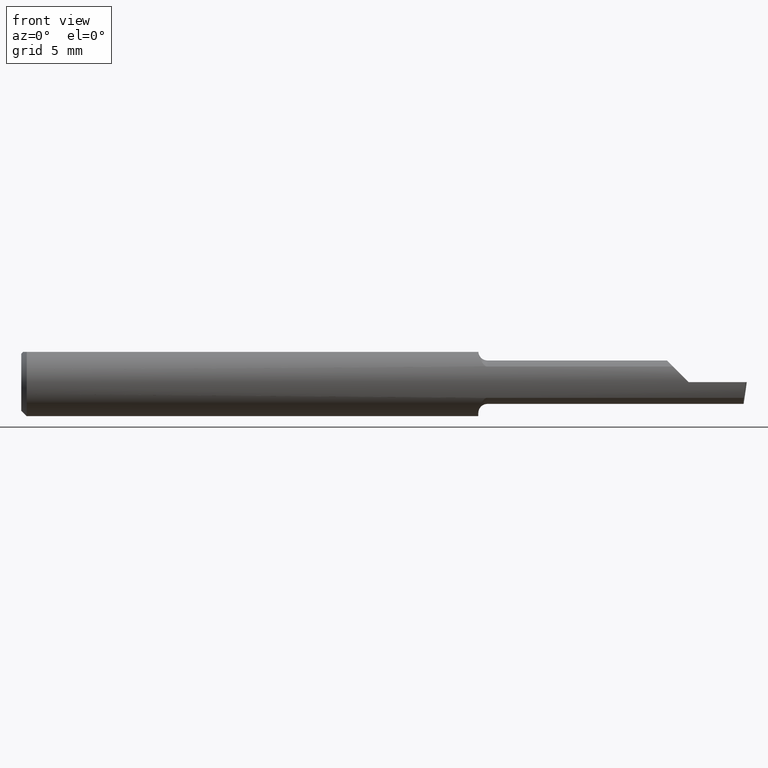
[diagram: clean part render]
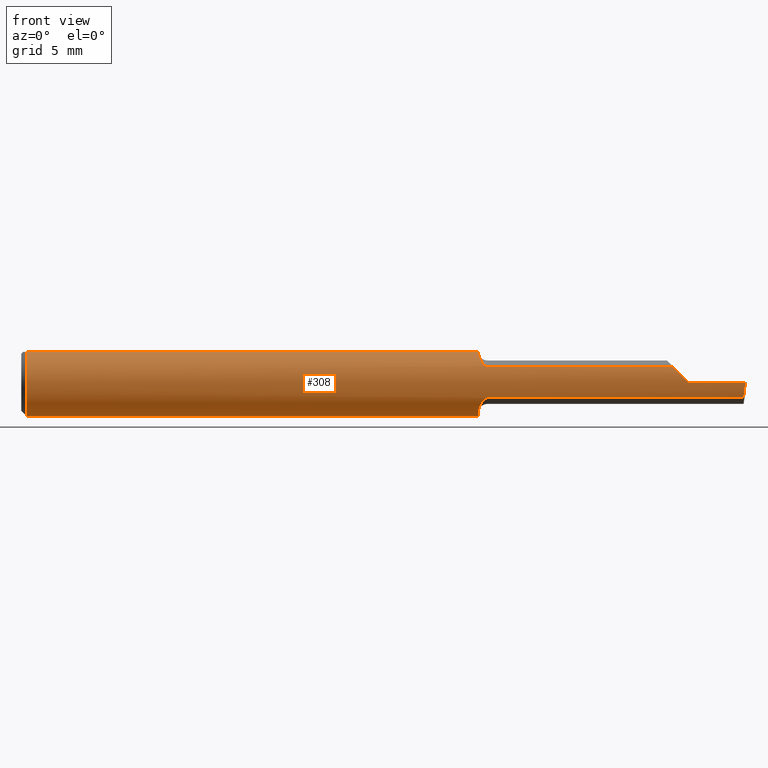
[diagram: same view with one face highlighted and labeled with its STEP entity id]
A machine part, front view. The second image highlights one B-rep face of the part: STEP entity #308.
In plain terms, the highlighted cylindrical surface (edge-blend (fillet) strip) has radius 2.3774 mm, axis along (-1, -0, -0).
Its self-contained STEP definition (entity closure, byte-faithful):
#5 = CARTESIAN_POINT ( 'NONE',  ( 1.262429122971264528, -0.06066239981255450858, 0.07149394324265896661 ) ) ;
#12 = EDGE_CURVE ( 'NONE', #49, #389, #305, .T. ) ;
#22 = VERTEX_POINT ( 'NONE', #260 ) ;
#25 = CARTESIAN_POINT ( 'NONE',  ( 5.659797890829555466E-31, -0.09359999999999998876, 1.030335658007946046E-15 ) ) ;
#28 = CARTESIAN_POINT ( 'NONE',  ( 1.996386342823452065, -0.09360000000000009979, -6.634435288474567089E-17 ) ) ;
#41 = ORIENTED_EDGE ( 'NONE', *, *, #392, .T. ) ;
#42 = CIRCLE ( 'NONE', #360, 0.09360000000000001652 ) ;
#46 = LINE ( 'NONE', #242, #625 ) ;
#47 = CARTESIAN_POINT ( 'NONE',  ( 1.259999999999999565, -0.04014498638740780084, -0.08455714216888013390 ) ) ;
#49 = VERTEX_POINT ( 'NONE', #311 ) ;
#55 = CARTESIAN_POINT ( 'NONE',  ( 1.269237437666584922, -0.07513599091569019006, -0.05602756047418826907 ) ) ;
#58 = CARTESIAN_POINT ( 'NONE',  ( 1.267076397983110780, -0.07187891021191493424, -0.06019546731975670972 ) ) ;
#64 = ORIENTED_EDGE ( 'NONE', *, *, #559, .F. ) ;
#71 = VECTOR ( 'NONE', #505, 39.37007874015748143 ) ;
#74 = EDGE_CURVE ( 'NONE', #22, #389, #200, .T. ) ;
#81 = CARTESIAN_POINT ( 'NONE',  ( 1.284999999999999920, -0.08307469879518099287, -0.04312255117789263320 ) ) ;
#82 = VERTEX_POINT ( 'NONE', #604 ) ;
#83 = CARTESIAN_POINT ( 'NONE',  ( 1.796877448822106649, -0.08307469879518082634, 0.04312255117789281361 ) ) ;
#89 = EDGE_CURVE ( 'NONE', #414, #599, #396, .T. ) ;
#93 = DIRECTION ( 'NONE',  ( 1.000000000000000000, 0.0000000000000000000, 0.0000000000000000000 ) ) ;
#96 = CARTESIAN_POINT ( 'NONE',  ( 1.260163936266268214, -0.04714148439307228738, 0.08105900800387486060 ) ) ;
#99 = CARTESIAN_POINT ( 'NONE',  ( 1.259999999999999565, 0.04209513035969836975, 0.08360000000000000764 ) ) ;
#105 = CARTESIAN_POINT ( 'NONE',  ( 1.263605992736883454, -0.06448586599545334808, -0.06805619079784631931 ) ) ;
#107 = LINE ( 'NONE', #25, #359 ) ;
#108 = VERTEX_POINT ( 'NONE', #347 ) ;
#109 = EDGE_CURVE ( 'NONE', #108, #414, #454, .T. ) ;
#110 = ORIENTED_EDGE ( 'NONE', *, *, #355, .T. ) ;
#119 = VERTEX_POINT ( 'NONE', #195 ) ;
#121 = DIRECTION ( 'NONE',  ( 1.000000000000000000, 0.0000000000000000000, 0.0000000000000000000 ) ) ;
#133 = ORIENTED_EDGE ( 'NONE', *, *, #465, .T. ) ;
#136 = CARTESIAN_POINT ( 'NONE',  ( 0.01499999999999999598, 0.0000000000000000000, 0.0000000000000000000 ) ) ;
#137 = AXIS2_PLACEMENT_3D ( 'NONE', #189, #283, #542 ) ;
#138 = ORIENTED_EDGE ( 'NONE', *, *, #208, .F. ) ;
#143 = EDGE_CURVE ( 'NONE', #271, #151, #341, .T. ) ;
#144 = CARTESIAN_POINT ( 'NONE',  ( 1.996386342823452065, -0.09360000000000009979, -6.634435288474567089E-17 ) ) ;
#151 = VERTEX_POINT ( 'NONE', #81 ) ;
#155 = CARTESIAN_POINT ( 'NONE',  ( 1.275413575230741392, -0.08042664989321215985, 0.04791921015141199086 ) ) ;
#157 = ORIENTED_EDGE ( 'NONE', *, *, #109, .F. ) ;
#162 = CARTESIAN_POINT ( 'NONE',  ( 1.259999999999999565, -0.03946024096385555846, -0.08487549341873928954 ) ) ;
#163 = CARTESIAN_POINT ( 'NONE',  ( 1.260121283746728382, -0.04659318327468393167, -0.08137765652544190487 ) ) ;
#169 = LINE ( 'NONE', #556, #550 ) ;
#175 = B_SPLINE_CURVE_WITH_KNOTS ( 'NONE', 3,
 ( #296, #209, #356, #499, #361, #55, #58, #105, #459, #562, #163, #509 ),
 .UNSPECIFIED., .F., .F.,
 ( 4, 2, 2, 2, 2, 4 ),
 ( 1.963546462201886234E-07, 0.0002171101490734188245, 0.0004340239435006174929, 0.0008678515323550143419, 0.001301679121209411245, 0.001735506710063808473 ),
 .UNSPECIFIED. ) ;
#189 = CARTESIAN_POINT ( 'NONE',  ( 0.0000000000000000000, 0.0000000000000000000, 0.0000000000000000000 ) ) ;
#191 = AXIS2_PLACEMENT_3D ( 'NONE', #450, #93, #343 ) ;
#195 = CARTESIAN_POINT ( 'NONE',  ( 0.01499999999999999598, 0.0000000000000000000, -0.09360000000000001652 ) ) ;
#199 = CARTESIAN_POINT ( 'NONE',  ( 1.569999999999999840, -0.08307469879518077083, -0.04312255117789288994 ) ) ;
#200 =( BOUNDED_CURVE ( )  B_SPLINE_CURVE ( 3, ( #405, #427, #223, #332 ),
 .UNSPECIFIED., .F., .F. ) 
 B_SPLINE_CURVE_WITH_KNOTS ( ( 4, 4 ),
 ( 4.712388980384689674, 5.191185112936686608 ),
 .UNSPECIFIED. ) 
 CURVE ( )  GEOMETRIC_REPRESENTATION_ITEM ( )  RATIONAL_B_SPLINE_CURVE ( ( 1.000000000000000000, 0.9809872534005956712, 0.9809872534005956712, 1.000000000000000000 ) ) 
 REPRESENTATION_ITEM ( '' )  );
#208 = EDGE_CURVE ( 'NONE', #119, #375, #42, .T. ) ;
#209 = CARTESIAN_POINT ( 'NONE',  ( 1.282100790213033914, -0.08307469879518096512, -0.04312255117789257769 ) ) ;
#217 =( BOUNDED_CURVE ( )  B_SPLINE_CURVE ( 3, ( #225, #222, #577, #28 ),
 .UNSPECIFIED., .F., .F. ) 
 B_SPLINE_CURVE_WITH_KNOTS ( ( 4, 4 ),
 ( 0.8819507499627846636, 1.360746882514781042 ),
 .UNSPECIFIED. ) 
 CURVE ( )  GEOMETRIC_REPRESENTATION_ITEM ( )  RATIONAL_B_SPLINE_CURVE ( ( 1.000000000000000000, 0.9809872534005956712, 0.9809872534005956712, 1.000000000000000000 ) ) 
 REPRESENTATION_ITEM ( '' )  );
#221 = AXIS2_PLACEMENT_3D ( 'NONE', #136, #534, #272 ) ;
#222 = CARTESIAN_POINT ( 'NONE',  ( 1.992827658777091893, -0.09002356847881787250, -0.02973569812382168345 ) ) ;
#223 = CARTESIAN_POINT ( 'NONE',  ( 1.810264301876177928, -0.09002356847881790025, 0.02973569812382162794 ) ) ;
#225 = CARTESIAN_POINT ( 'NONE',  ( 1.991365359011875169, -0.08307469879518077083, -0.04312255117789288994 ) ) ;
#236 = VERTEX_POINT ( 'NONE', #399 ) ;
#242 = CARTESIAN_POINT ( 'NONE',  ( 0.0000000000000000000, 0.04209513035969837669, 0.08360000000000000764 ) ) ;
#260 = CARTESIAN_POINT ( 'NONE',  ( 1.840000000000000080, -0.09360000000000005815, 1.959434878635762025E-17 ) ) ;
#271 = VERTEX_POINT ( 'NONE', #438 ) ;
#272 = DIRECTION ( 'NONE',  ( 0.0000000000000000000, 0.0000000000000000000, 1.000000000000000000 ) ) ;
#283 = DIRECTION ( 'NONE',  ( -1.000000000000000000, -0.0000000000000000000, -0.0000000000000000000 ) ) ;
#288 = CARTESIAN_POINT ( 'NONE',  ( 1.259999999999999565, -0.03946024096385555846, -0.08487549341873928954 ) ) ;
#295 = CARTESIAN_POINT ( 'NONE',  ( 1.269277238843510514, -0.07518688180261752507, 0.05595855205958084888 ) ) ;
#296 = CARTESIAN_POINT ( 'NONE',  ( 1.284999999999999920, -0.08307469879518099287, -0.04312255117789263320 ) ) ;
#299 = CARTESIAN_POINT ( 'NONE',  ( 1.267169981117899580, -0.07201923175886891515, 0.06001882546782343758 ) ) ;
#300 = DIRECTION ( 'NONE',  ( -1.000000000000000000, -0.0000000000000000000, -0.0000000000000000000 ) ) ;
#301 = CARTESIAN_POINT ( 'NONE',  ( 1.273723886093657054, -0.07921817987507924486, 0.04991299092652125291 ) ) ;
#305 = LINE ( 'NONE', #422, #426 ) ;
#307 = CYLINDRICAL_SURFACE ( 'NONE', #137, 0.09360000000000001652 ) ;
#308 = ADVANCED_FACE ( 'NONE', ( #371 ), #307, .T. ) ;
#311 = CARTESIAN_POINT ( 'NONE',  ( 1.284999999999999920, -0.08307469879518063205, 0.04312255117789297321 ) ) ;
#320 = VERTEX_POINT ( 'NONE', #144 ) ;
#329 = CARTESIAN_POINT ( 'NONE',  ( 0.01499999999999999598, 0.0000000000000000000, 0.0000000000000000000 ) ) ;
#332 = CARTESIAN_POINT ( 'NONE',  ( 1.796877448822106649, -0.08307469879518082634, 0.04312255117789281361 ) ) ;
#341 = LINE ( 'NONE', #199, #71 ) ;
#342 = ORIENTED_EDGE ( 'NONE', *, *, #656, .F. ) ;
#343 = DIRECTION ( 'NONE',  ( 0.0000000000000000000, 0.0000000000000000000, -1.000000000000000000 ) ) ;
#347 = CARTESIAN_POINT ( 'NONE',  ( 1.260020127471513041, -0.04149999999999998135, -0.08389702020930184245 ) ) ;
#352 = ORIENTED_EDGE ( 'NONE', *, *, #89, .F. ) ;
#355 = EDGE_CURVE ( 'NONE', #271, #320, #217, .T. ) ;
#356 = CARTESIAN_POINT ( 'NONE',  ( 1.279498465877713986, -0.08233174416856402222, -0.04456779206614366884 ) ) ;
#359 = VECTOR ( 'NONE', #579, 39.37007874015748143 ) ;
#360 = AXIS2_PLACEMENT_3D ( 'NONE', #329, #386, #478 ) ;
#361 = CARTESIAN_POINT ( 'NONE',  ( 1.273672693420809132, -0.07917899622880061883, -0.04997532113045941027 ) ) ;
#371 = FACE_OUTER_BOUND ( 'NONE', #540, .T. ) ;
#372 = B_SPLINE_CURVE_WITH_KNOTS ( 'NONE', 3,
 ( #617, #96, #658, #5, #453, #299, #295, #301, #155, #458, #498, #403 ),
 .UNSPECIFIED., .F., .F.,
 ( 4, 2, 2, 2, 2, 4 ),
 ( 4.385794166508631868E-07, 0.0004249653867803444818, 0.0008494921941440384964, 0.001274019001507732457, 0.001486282405189579599, 0.001698545808871426525 ),
 .UNSPECIFIED. ) ;
#375 = VERTEX_POINT ( 'NONE', #529 ) ;
#386 = DIRECTION ( 'NONE',  ( -1.000000000000000000, -0.0000000000000000000, -0.0000000000000000000 ) ) ;
#389 = VERTEX_POINT ( 'NONE', #83 ) ;
#392 = EDGE_CURVE ( 'NONE', #320, #22, #107, .T. ) ;
#394 = EDGE_CURVE ( 'NONE', #82, #49, #372, .T. ) ;
#396 = CIRCLE ( 'NONE', #191, 0.09360000000000001652 ) ;
#399 = CARTESIAN_POINT ( 'NONE',  ( 0.01499999999999999598, 0.04209513035969837669, 0.08360000000000000764 ) ) ;
#403 = CARTESIAN_POINT ( 'NONE',  ( 1.284999999999999920, -0.08307469879518063205, 0.04312255117789297321 ) ) ;
#405 = CARTESIAN_POINT ( 'NONE',  ( 1.840000000000000080, -0.09360000000000005815, 1.959434878635762025E-17 ) ) ;
#414 = VERTEX_POINT ( 'NONE', #162 ) ;
#422 = CARTESIAN_POINT ( 'NONE',  ( 1.569999999999999840, -0.08307469879518077083, 0.04312255117789288994 ) ) ;
#426 = VECTOR ( 'NONE', #121, 39.37007874015748143 ) ;
#427 = CARTESIAN_POINT ( 'NONE',  ( 1.824917075065774830, -0.09360000000000001652, 0.01508292493422499526 ) ) ;
#438 = CARTESIAN_POINT ( 'NONE',  ( 1.991365359011875169, -0.08307469879518077083, -0.04312255117789288994 ) ) ;
#445 = CARTESIAN_POINT ( 'NONE',  ( 1.260020127471513041, -0.04149999999999998135, -0.08389702020930184245 ) ) ;
#450 = CARTESIAN_POINT ( 'NONE',  ( 1.259999999999999565, 0.0000000000000000000, 0.0000000000000000000 ) ) ;
#453 = CARTESIAN_POINT ( 'NONE',  ( 1.263721006865827334, -0.06478644025684783536, 0.06776242552123266927 ) ) ;
#454 = B_SPLINE_CURVE_WITH_KNOTS ( 'NONE', 3,
 ( #445, #548, #47, #288 ),
 .UNSPECIFIED., .F., .F.,
 ( 4, 4 ),
 ( 0.001735506710063808473, 0.001793010945052111050 ),
 .UNSPECIFIED. ) ;
#458 = CARTESIAN_POINT ( 'NONE',  ( 1.279521451227007667, -0.08233651528522399621, 0.04455777109850297957 ) ) ;
#459 = CARTESIAN_POINT ( 'NONE',  ( 1.262355770679723710, -0.06040702343486044346, -0.07171535245186137775 ) ) ;
#465 = EDGE_CURVE ( 'NONE', #236, #599, #46, .T. ) ;
#466 = ORIENTED_EDGE ( 'NONE', *, *, #12, .F. ) ;
#469 = ORIENTED_EDGE ( 'NONE', *, *, #143, .F. ) ;
#470 = EDGE_CURVE ( 'NONE', #82, #375, #169, .T. ) ;
#478 = DIRECTION ( 'NONE',  ( 0.0000000000000000000, 0.0000000000000000000, 1.000000000000000000 ) ) ;
#498 = CARTESIAN_POINT ( 'NONE',  ( 1.282123707331537465, -0.08307469879541826141, 0.04312255117743559601 ) ) ;
#499 = CARTESIAN_POINT ( 'NONE',  ( 1.275354605856553691, -0.08039319987159075642, -0.04797642756495483496 ) ) ;
#505 = DIRECTION ( 'NONE',  ( -1.000000000000000000, -0.0000000000000000000, -0.0000000000000000000 ) ) ;
#509 = CARTESIAN_POINT ( 'NONE',  ( 1.260020127471513041, -0.04149999999999998135, -0.08389702020930184245 ) ) ;
#529 = CARTESIAN_POINT ( 'NONE',  ( 0.01499999999999999944, -0.04209513035969835587, 0.08360000000000000764 ) ) ;
#534 = DIRECTION ( 'NONE',  ( -1.000000000000000000, -0.0000000000000000000, -0.0000000000000000000 ) ) ;
#540 = EDGE_LOOP ( 'NONE', ( #469, #110, #41, #557, #466, #609, #618, #138, #64, #133, #352, #157, #342 ) ) ;
#542 = DIRECTION ( 'NONE',  ( 0.0000000000000000000, 0.0000000000000000000, 1.000000000000000000 ) ) ;
#548 = CARTESIAN_POINT ( 'NONE',  ( 1.260006719116742335, -0.04082489400077270181, -0.08423096411932438909 ) ) ;
#550 = VECTOR ( 'NONE', #300, 39.37007874015748143 ) ;
#556 = CARTESIAN_POINT ( 'NONE',  ( 0.0000000000000000000, -0.04209513035969835587, 0.08360000000000000764 ) ) ;
#557 = ORIENTED_EDGE ( 'NONE', *, *, #74, .T. ) ;
#559 = EDGE_CURVE ( 'NONE', #236, #119, #595, .T. ) ;
#562 = CARTESIAN_POINT ( 'NONE',  ( 1.260604804002112278, -0.05145819953596714874, -0.07838465384289880489 ) ) ;
#577 = CARTESIAN_POINT ( 'NONE',  ( 1.994533757673610408, -0.09360000000000001652, -0.01508292493422509067 ) ) ;
#579 = DIRECTION ( 'NONE',  ( -1.000000000000000000, -0.0000000000000000000, -0.0000000000000000000 ) ) ;
#595 = CIRCLE ( 'NONE', #221, 0.09360000000000001652 ) ;
#599 = VERTEX_POINT ( 'NONE', #99 ) ;
#604 = CARTESIAN_POINT ( 'NONE',  ( 1.260033712670300066, -0.04209513035969835587, 0.08360000000000000764 ) ) ;
#609 = ORIENTED_EDGE ( 'NONE', *, *, #394, .F. ) ;
#610 = DIRECTION ( 'NONE',  ( 1.000000000000000000, 0.0000000000000000000, 0.0000000000000000000 ) ) ;
#617 = CARTESIAN_POINT ( 'NONE',  ( 1.260033712670300066, -0.04209513035969835587, 0.08360000000000000764 ) ) ;
#618 = ORIENTED_EDGE ( 'NONE', *, *, #470, .T. ) ;
#625 = VECTOR ( 'NONE', #610, 39.37007874015748143 ) ;
#656 = EDGE_CURVE ( 'NONE', #151, #108, #175, .T. ) ;
#658 = CARTESIAN_POINT ( 'NONE',  ( 1.260661035553190867, -0.05185656404701180500, 0.07811662714583193778 ) ) ;